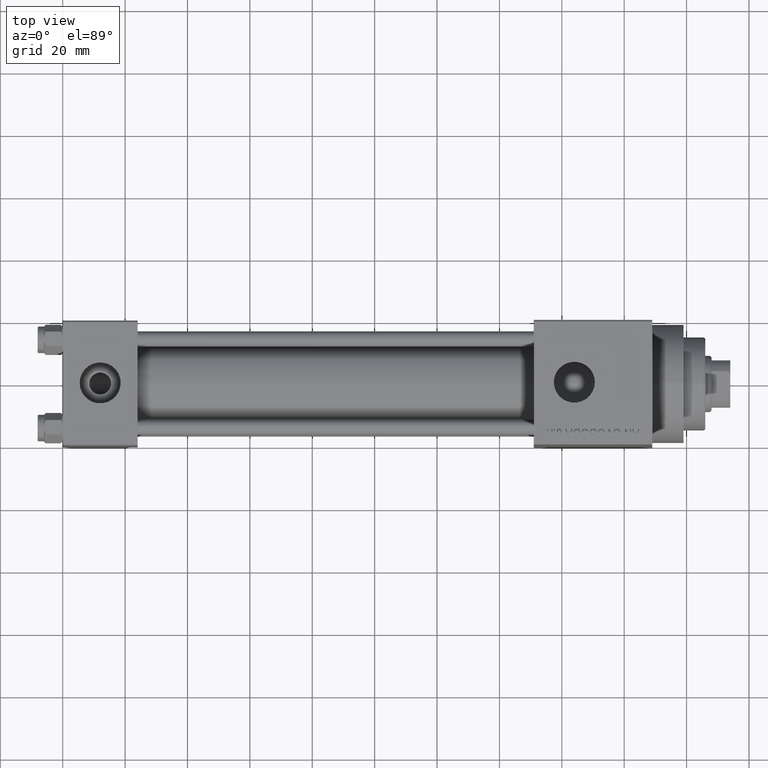
[diagram: clean part render]
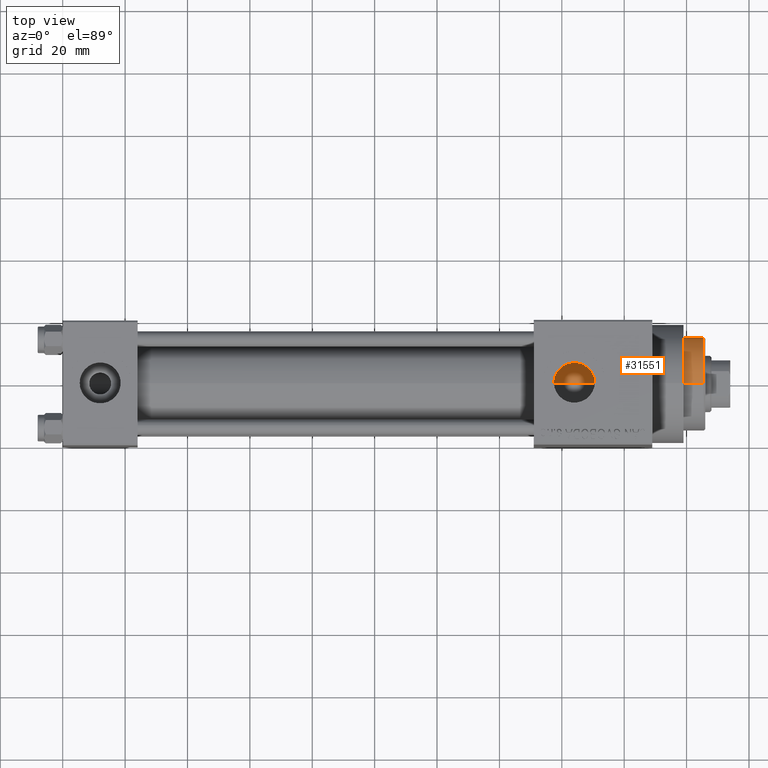
[diagram: same view with one face highlighted and labeled with its STEP entity id]
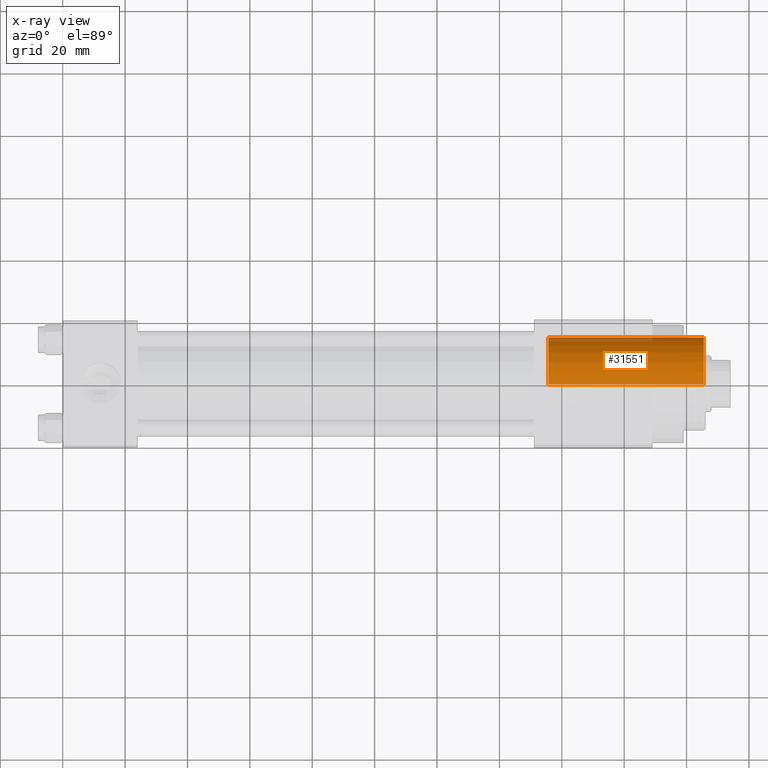
[diagram: x-ray of the same camera — body ghosted, the highlighted face saturated]
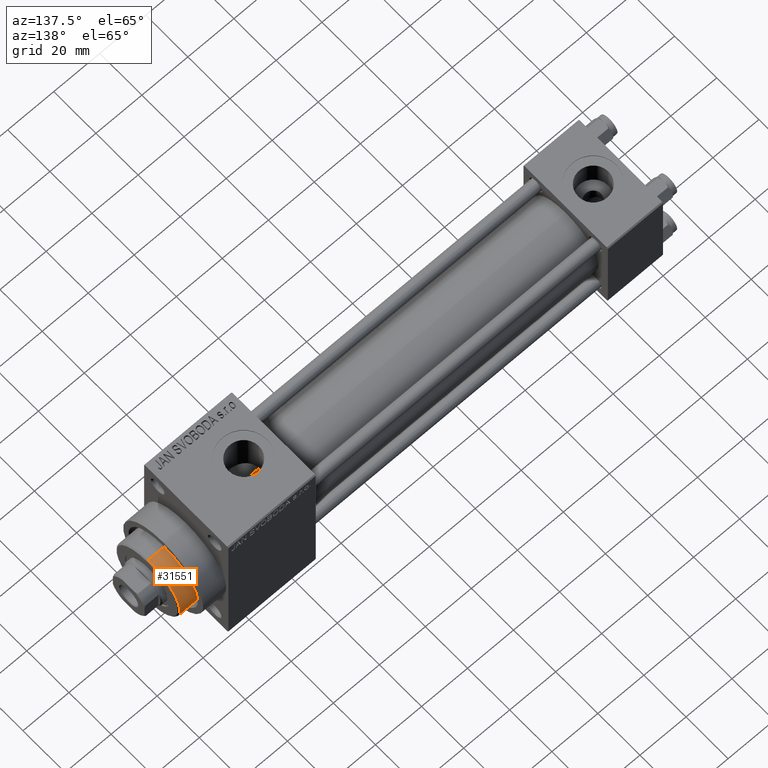
[diagram: same view with one face highlighted and labeled with its STEP entity id]
A machine part, top view. The second image highlights one B-rep face of the part: STEP entity #31551.
The next image is the same camera in x-ray: the body ghosted, the highlighted face saturated — about 9% of this face is hidden behind the body in this view.
A second angle (auxiliary view) of the same face is appended — the face is thin or edge-on in the first view.
In plain terms, the highlighted cylindrical surface (partial cylindrical patch) has radius 15 mm, axis along (-1, 0, 0).
Its self-contained STEP definition (entity closure, byte-faithful):
#765 = VERTEX_POINT ( 'NONE', #25774 ) ;
#1241 = CARTESIAN_POINT ( 'NONE',  ( 15.00000000000000000, 1.836970198721029589E-15, 0.000000000000000000 ) ) ;
#2054 = VECTOR ( 'NONE', #43686, 1000.000000000000000 ) ;
#3438 = LINE ( 'NONE', #10823, #2054 ) ;
#4758 = DIRECTION ( 'NONE',  ( -0.000000000000000000, -0.000000000000000000, -1.000000000000000000 ) ) ;
#5193 = EDGE_CURVE ( 'NONE', #26290, #14364, #3438, .T. ) ;
#5851 = ORIENTED_EDGE ( 'NONE', *, *, #12330, .T. ) ;
#7499 = VECTOR ( 'NONE', #4758, 1000.000000000000000 ) ;
#7953 = ORIENTED_EDGE ( 'NONE', *, *, #19636, .T. ) ;
#9407 = DIRECTION ( 'NONE',  ( 0.000000000000000000, 0.000000000000000000, 1.000000000000000000 ) ) ;
#9683 = VERTEX_POINT ( 'NONE', #1241 ) ;
#10537 = CARTESIAN_POINT ( 'NONE',  ( 0.000000000000000000, 0.000000000000000000, 43.25999999999999801 ) ) ;
#10823 = CARTESIAN_POINT ( 'NONE',  ( -15.00000000000000000, 0.000000000000000000, 43.25999999999999801 ) ) ;
#11652 = EDGE_CURVE ( 'NONE', #765, #9683, #22859, .T. ) ;
#12146 = CIRCLE ( 'NONE', #13689, 15.00000000000000000 ) ;
#12330 = EDGE_CURVE ( 'NONE', #14364, #9683, #12146, .T. ) ;
#13689 = AXIS2_PLACEMENT_3D ( 'NONE', #23451, #9407, #16315 ) ;
#13822 = AXIS2_PLACEMENT_3D ( 'NONE', #25435, #28073, #39493 ) ;
#14364 = VERTEX_POINT ( 'NONE', #27736 ) ;
#14609 = ORIENTED_EDGE ( 'NONE', *, *, #11652, .F. ) ;
#16315 = DIRECTION ( 'NONE',  ( 1.000000000000000000, 0.000000000000000000, 0.000000000000000000 ) ) ;
#19636 = EDGE_CURVE ( 'NONE', #765, #26290, #32078, .T. ) ;
#22859 = LINE ( 'NONE', #37391, #7499 ) ;
#23451 = CARTESIAN_POINT ( 'NONE',  ( 0.000000000000000000, 0.000000000000000000, 0.000000000000000000 ) ) ;
#25069 = DIRECTION ( 'NONE',  ( -0.000000000000000000, -0.000000000000000000, -1.000000000000000000 ) ) ;
#25435 = CARTESIAN_POINT ( 'NONE',  ( 0.000000000000000000, 0.000000000000000000, 49.75999999999998380 ) ) ;
#25536 = FACE_OUTER_BOUND ( 'NONE', #35188, .T. ) ;
#25774 = CARTESIAN_POINT ( 'NONE',  ( 15.00000000000000000, 1.836970198721029589E-15, 49.75999999999998380 ) ) ;
#26290 = VERTEX_POINT ( 'NONE', #38293 ) ;
#27736 = CARTESIAN_POINT ( 'NONE',  ( -15.00000000000000000, 0.000000000000000000, 0.000000000000000000 ) ) ;
#28073 = DIRECTION ( 'NONE',  ( 0.000000000000000000, 0.000000000000000000, -1.000000000000000000 ) ) ;
#29116 = DIRECTION ( 'NONE',  ( -1.000000000000000000, 0.000000000000000000, 0.000000000000000000 ) ) ;
#31551 = ADVANCED_FACE ( 'NONE', ( #25536 ), #40315, .T. ) ;
#32078 = CIRCLE ( 'NONE', #13822, 15.00000000000000000 ) ;
#35188 = EDGE_LOOP ( 'NONE', ( #14609, #7953, #41812, #5851 ) ) ;
#37391 = CARTESIAN_POINT ( 'NONE',  ( 15.00000000000000000, 1.836970198721029589E-15, 43.25999999999999801 ) ) ;
#38293 = CARTESIAN_POINT ( 'NONE',  ( -15.00000000000000000, 0.000000000000000000, 49.75999999999998380 ) ) ;
#39493 = DIRECTION ( 'NONE',  ( 1.000000000000000000, 0.000000000000000000, 0.000000000000000000 ) ) ;
#40315 = CYLINDRICAL_SURFACE ( 'NONE', #45287, 15.00000000000000000 ) ;
#41812 = ORIENTED_EDGE ( 'NONE', *, *, #5193, .T. ) ;
#43686 = DIRECTION ( 'NONE',  ( -0.000000000000000000, -0.000000000000000000, -1.000000000000000000 ) ) ;
#45287 = AXIS2_PLACEMENT_3D ( 'NONE', #10537, #25069, #29116 ) ;